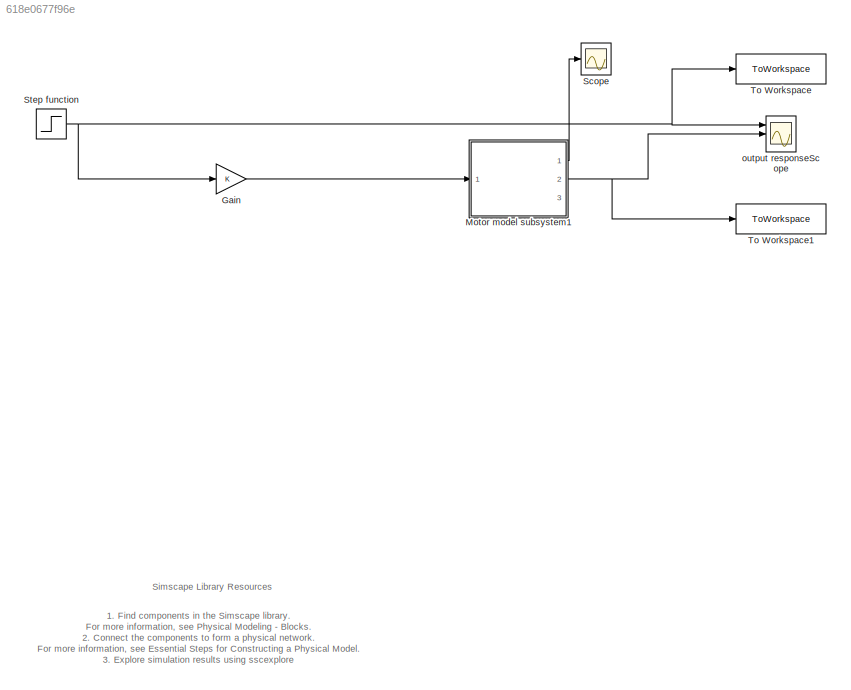
MODEL slx_618e0677f96e
KIND model
CONFIG AbsTol = 1e-3
CONFIG EnableMultiTasking = off
CONFIG FixedStep = auto
CONFIG MaxStep = auto
CONFIG MinStep = auto
CONFIG RelTol = 1e-3
CONFIG SampleTimeConstraint = Unconstrained
CONFIG SolverName = VariableStepAuto
CONFIG StartTime = 0.0
CONFIG StopTime = 1
BLOCK [Gain] Gain
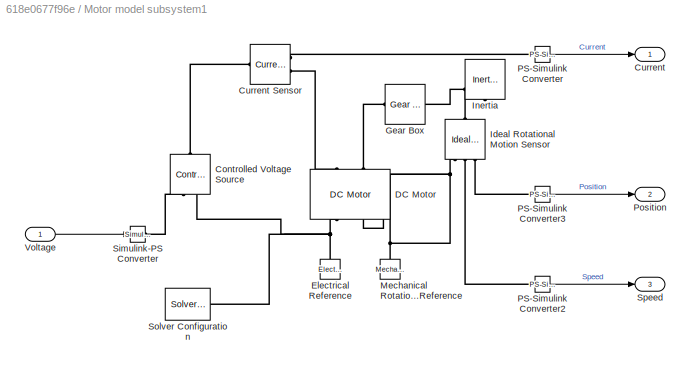
BLOCK [SubSystem] Motor model subsystem1
  Ports = [1, 3]
  RequestExecContextInheritance = off
BLOCK [Reference] Motor model subsystem1/Controlled Voltage Source   REF=fl_lib/Electrical/Electrical Sources/Controlled Voltage
Source
  NameLocation = right
  Ports = [0, 0, 0, 0, 0, 1, 2]
  SourceBlock = fl_lib/Electrical/Electrical Sources/Controlled Voltage\nSource
  SourceProductBaseCode = SS
  SourceType = Controlled Voltage\nSource
BLOCK [Outport] Motor model subsystem1/Current
BLOCK [Reference] Motor model subsystem1/Current Sensor   REF=fl_lib/Electrical/Electrical Sensors/Current Sensor
  Ports = [0, 0, 0, 0, 0, 1, 2]
  SourceBlock = fl_lib/Electrical/Electrical Sensors/Current Sensor
  SourceProductBaseCode = SS
  SourceType = Current Sensor
BLOCK [Reference] Motor model subsystem1/DC Motor   REF=ee_lib/Electromechanical/Brushed Motors/DC Motor
  NameLocation = right
  Ports = [0, 0, 0, 0, 0, 2, 2]
  SourceBlock = ee_lib/Electromechanical/Brushed Motors/DC Motor
  SourceProductBaseCode = PS
  SourceType = DC Motor
BLOCK [Reference] Motor model subsystem1/Electrical Reference  REF=fl_lib/Electrical/Electrical Elements/Electrical Reference
  NameLocation = right
  Ports = [0, 0, 0, 0, 0, 1]
  SourceBlock = fl_lib/Electrical/Electrical Elements/Electrical Reference
  SourceProductBaseCode = SS
  SourceType = Electrical Reference
BLOCK [Reference] Motor model subsystem1/Gear Box  REF=fl_lib/Mechanical/Mechanisms/Gear Box
  Ports = [0, 0, 0, 0, 0, 1, 1]
  SourceBlock = fl_lib/Mechanical/Mechanisms/Gear Box
  SourceProductBaseCode = SS
  SourceType = Gear Box
BLOCK [Reference] Motor model subsystem1/Ideal Rotational Motion Sensor   REF=fl_lib/Mechanical/Mechanical Sensors/Ideal Rotational
Motion Sensor
  NameLocation = right
  Ports = [0, 0, 0, 0, 0, 1, 3]
  SourceBlock = fl_lib/Mechanical/Mechanical Sensors/Ideal Rotational\nMotion Sensor
  SourceProductBaseCode = SS
  SourceType = Ideal Rotational\nMotion Sensor
BLOCK [Reference] Motor model subsystem1/Inertia  REF=fl_lib/Mechanical/Rotational Elements/Inertia
  NameLocation = left
  Ports = [0, 0, 0, 0, 0, 1]
  SourceBlock = fl_lib/Mechanical/Rotational Elements/Inertia
  SourceProductBaseCode = SS
  SourceType = Inertia
BLOCK [Reference] Motor model subsystem1/Mechanical Rotational Reference  REF=fl_lib/Mechanical/Rotational Elements/Mechanical
Rotational Reference
  NameLocation = right
  Ports = [0, 0, 0, 0, 0, 1]
  SourceBlock = fl_lib/Mechanical/Rotational Elements/Mechanical\nRotational Reference
  SourceProductBaseCode = SS
  SourceType = Mechanical\nRotational Reference
BLOCK [Reference] Motor model subsystem1/PS-Simulink Converter   REF=nesl_utility/PS-Simulink
Converter
  Ports = [0, 1, 0, 0, 0, 1]
  SourceBlock = nesl_utility/PS-Simulink\nConverter
  SourceProductBaseCode = SS
  SourceType = PS-Simulink\nConverter
BLOCK [Reference] Motor model subsystem1/PS-Simulink Converter2   REF=nesl_utility/PS-Simulink
Converter
  Ports = [0, 1, 0, 0, 0, 1]
  SourceBlock = nesl_utility/PS-Simulink\nConverter
  SourceProductBaseCode = SS
  SourceType = PS-Simulink\nConverter
BLOCK [Reference] Motor model subsystem1/PS-Simulink Converter3   REF=nesl_utility/PS-Simulink
Converter
  Ports = [0, 1, 0, 0, 0, 1]
  SourceBlock = nesl_utility/PS-Simulink\nConverter
  SourceProductBaseCode = SS
  SourceType = PS-Simulink\nConverter
BLOCK [Outport] Motor model subsystem1/Position
  Port = 2
BLOCK [Reference] Motor model subsystem1/Simulink-PS Converter   REF=nesl_utility/Simulink-PS
Converter
  Ports = [1, 0, 0, 0, 0, 0, 1]
  SourceBlock = nesl_utility/Simulink-PS\nConverter
  SourceProductBaseCode = SS
  SourceType = Simulink-PS\nConverter
BLOCK [Reference] Motor model subsystem1/Solver Configuration   REF=nesl_utility/Solver
Configuration
  Ports = [0, 0, 0, 0, 0, 0, 1]
  SourceBlock = nesl_utility/Solver\nConfiguration
  SourceProductBaseCode = SS
  SourceType = Solver\nConfiguration
BLOCK [Outport] Motor model subsystem1/Speed
  Port = 3
BLOCK [Inport] Motor model subsystem1/Voltage
BLOCK [Scope] Scope
  Floating = off
  NumInputPorts = 1
  Ports = [1]
  ScopeSpecificationString = Simulink.scopes.TimeScopeBlockCfg('CurrentConfiguration', extmgr.ConfigurationSet(extmgr.Configuration('Core','General UI',true),extmgr.Configuration('Core','Source UI',true),extmgr.Configuration('Sources','WiredSimulink',true,'DataLoggingVariableName','ScopeData1'),extmgr.Configuration('Visuals','Time Domain',true,'SerializedDisplays',{struct('MinYLimReal','-0.68949','MaxYLimReal','5.40407','YLab...<+1389ch>
BLOCK [Step] Step function
  After = 10
  SampleTime = 0
  Time = 0
BLOCK [ToWorkspace] To Workspace
  FixptAsFi = on
  MaxDataPoints = inf
  Ports = [1]
  SampleTime = 1e-3
  SaveFormat = Timeseries
  VariableName = simout
BLOCK [ToWorkspace] To Workspace1
  FixptAsFi = on
  MaxDataPoints = inf
  Ports = [1]
  SampleTime = 1e-3
  SaveFormat = Timeseries
  VariableName = simout1
BLOCK [Scope] output responseScope 
  Floating = off
  NumInputPorts = 3
  Ports = [3]
  ScopeSpecificationString = Simulink.scopes.TimeScopeBlockCfg('CurrentConfiguration', extmgr.ConfigurationSet(extmgr.Configuration('Core','General UI',true),extmgr.Configuration('Core','Source UI',true),extmgr.Configuration('Sources','WiredSimulink',true,'DataLoggingVariableName','ScopeData2'),extmgr.Configuration('Visuals','Time Domain',true,'SerializedDisplays',{struct('MinYLimReal','-1.25','MaxYLimReal','11.25','YLabelRea...<+1455ch>
ANNOTATION (root): 1. Find components in the Simscape library . For more information, see Physical Modeling - Blocks . 2. Connect the components to form a physical network. For more information, see Essential Steps for Constructing a Physical Model . 3. Explore simulation results using sscexplore
ANNOTATION (root): Simscape Library Resources
LINE Gain:1 -> Motor model subsystem1:1
LINE Motor model subsystem1/PS-Simulink Converter :1 -> Motor model subsystem1/Current:1
LINE Motor model subsystem1/PS-Simulink Converter2 :1 -> Motor model subsystem1/Speed:1
LINE Motor model subsystem1/PS-Simulink Converter3 :1 -> Motor model subsystem1/Position:1
LINE Motor model subsystem1/Voltage:1 -> Motor model subsystem1/Simulink-PS Converter :1
LINE Motor model subsystem1:1 -> Scope:1
NET Motor model subsystem1:2 -> To Workspace1:1, output responseScope :2
NET Step function:1 -> Gain:1, To Workspace:1, output responseScope :1
PLINE Motor model subsystem1/Controlled Voltage Source :LConn1 -- Motor model subsystem1/Current Sensor :LConn1
PLINE Motor model subsystem1/Controlled Voltage Source :RConn1 -- Motor model subsystem1/Simulink-PS Converter :RConn1
PNET net1: Motor model subsystem1/Controlled Voltage Source :RConn2 -- Motor model subsystem1/DC Motor :RConn1 -- Motor model subsystem1/Electrical Reference:LConn1 -- Motor model subsystem1/Solver Configuration :RConn1
PLINE Motor model subsystem1/Current Sensor :RConn1 -- Motor model subsystem1/PS-Simulink Converter :LConn1
PLINE Motor model subsystem1/Current Sensor :RConn2 -- Motor model subsystem1/DC Motor :LConn1
PLINE Motor model subsystem1/DC Motor :LConn2 -- Motor model subsystem1/Gear Box:LConn1
PNET net2: Motor model subsystem1/DC Motor :RConn2 -- Motor model subsystem1/Ideal Rotational Motion Sensor :RConn1 -- Motor model subsystem1/Mechanical Rotational Reference:LConn1
PNET net3: Motor model subsystem1/Gear Box:RConn1 -- Motor model subsystem1/Ideal Rotational Motion Sensor :LConn1 -- Motor model subsystem1/Inertia:LConn1
PLINE Motor model subsystem1/Ideal Rotational Motion Sensor :RConn2 -- Motor model subsystem1/PS-Simulink Converter2 :LConn1
PLINE Motor model subsystem1/Ideal Rotational Motion Sensor :RConn3 -- Motor model subsystem1/PS-Simulink Converter3 :LConn1
note: NET lines group one-source signal fan-out (src -> all destinations, sorted); 1:1 wires keep LINE; PNET lines group multi-terminal physical nets as a canonical sorted terminal list (undirected conserving connections); 2-terminal nets keep the pairwise PLINE form
